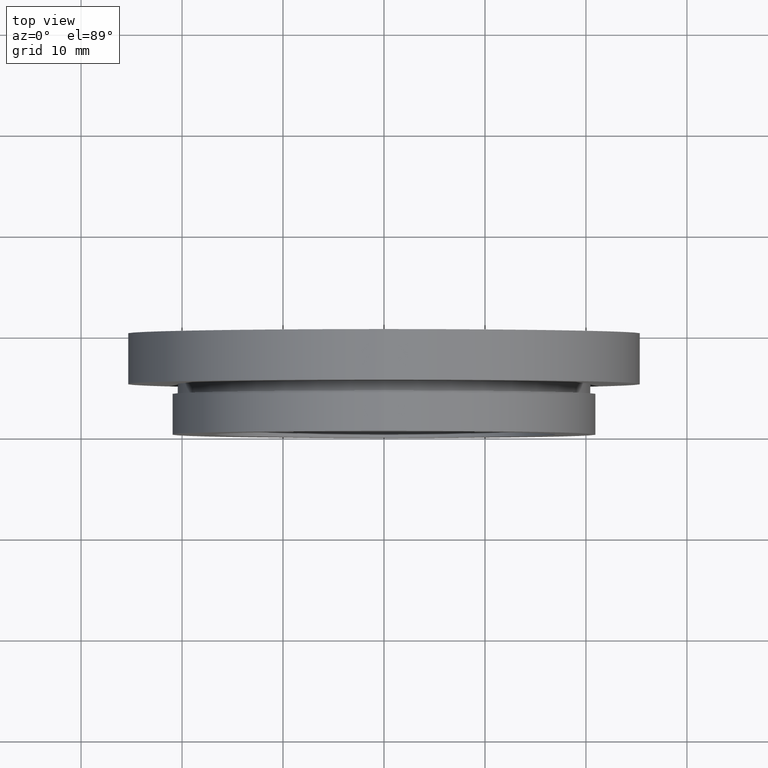
[diagram: clean part render]
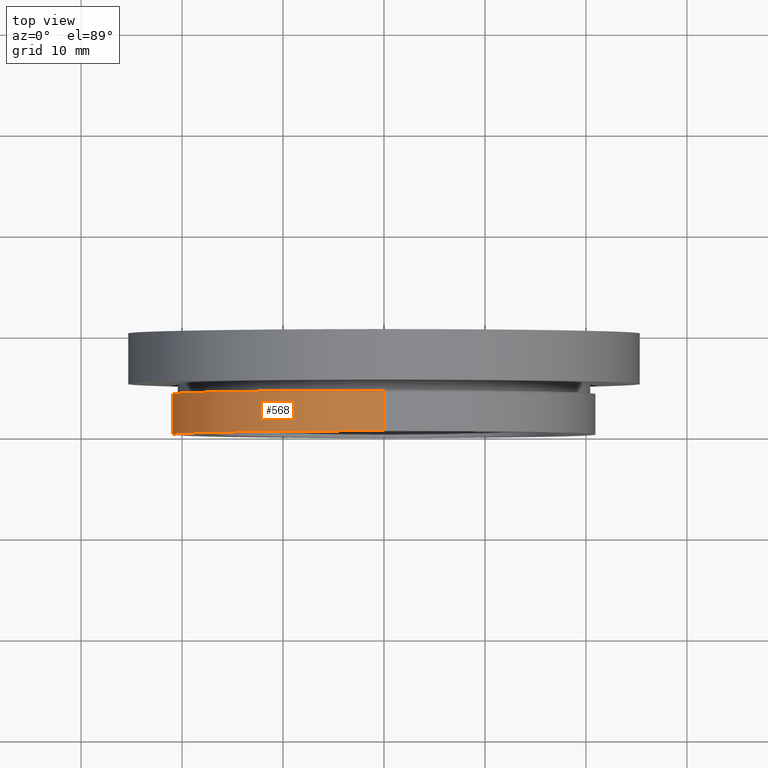
[diagram: same view with one face highlighted and labeled with its STEP entity id]
A machine part, top view. The second image highlights one B-rep face of the part: STEP entity #568.
In plain terms, the highlighted cylindrical surface (partial cylindrical patch) has radius 21 mm, axis along (-0, 1, -0).
Its self-contained STEP definition (entity closure, byte-faithful):
#11 = DIRECTION ( 'NONE',  ( 0.0000000000000000000, 0.0000000000000000000, 1.000000000000000000 ) ) ;
#18 = CARTESIAN_POINT ( 'NONE',  ( 2.571758278209441700E-015, 4.000000000000000000, -21.00000000000000000 ) ) ;
#55 = VECTOR ( 'NONE', #423, 1000.000000000000000 ) ;
#77 = EDGE_CURVE ( 'NONE', #360, #362, #102, .T. ) ;
#102 = LINE ( 'NONE', #282, #55 ) ;
#103 = EDGE_CURVE ( 'NONE', #555, #360, #612, .T. ) ;
#143 = EDGE_CURVE ( 'NONE', #506, #362, #347, .T. ) ;
#166 = CARTESIAN_POINT ( 'NONE',  ( 0.0000000000000000000, 13.74468085106383300, 0.0000000000000000000 ) ) ;
#172 = AXIS2_PLACEMENT_3D ( 'NONE', #250, #266, #264 ) ;
#236 = EDGE_CURVE ( 'NONE', #555, #506, #449, .T. ) ;
#243 = ORIENTED_EDGE ( 'NONE', *, *, #77, .T. ) ;
#250 = CARTESIAN_POINT ( 'NONE',  ( 0.0000000000000000000, 0.0000000000000000000, 0.0000000000000000000 ) ) ;
#263 = AXIS2_PLACEMENT_3D ( 'NONE', #286, #284, #11 ) ;
#264 = DIRECTION ( 'NONE',  ( 0.0000000000000000000, 0.0000000000000000000, 1.000000000000000000 ) ) ;
#266 = DIRECTION ( 'NONE',  ( -0.0000000000000000000, 1.000000000000000000, -0.0000000000000000000 ) ) ;
#282 = CARTESIAN_POINT ( 'NONE',  ( 0.0000000000000000000, 13.74468085106383300, 21.00000000000000000 ) ) ;
#284 = DIRECTION ( 'NONE',  ( -0.0000000000000000000, 1.000000000000000000, -0.0000000000000000000 ) ) ;
#286 = CARTESIAN_POINT ( 'NONE',  ( 0.0000000000000000000, 4.000000000000000000, 0.0000000000000000000 ) ) ;
#287 = AXIS2_PLACEMENT_3D ( 'NONE', #166, #373, #451 ) ;
#338 = ORIENTED_EDGE ( 'NONE', *, *, #143, .F. ) ;
#347 = CIRCLE ( 'NONE', #263, 21.00000000000000000 ) ;
#360 = VERTEX_POINT ( 'NONE', #606 ) ;
#362 = VERTEX_POINT ( 'NONE', #591 ) ;
#373 = DIRECTION ( 'NONE',  ( -0.0000000000000000000, 1.000000000000000000, -0.0000000000000000000 ) ) ;
#394 = ORIENTED_EDGE ( 'NONE', *, *, #236, .F. ) ;
#398 = VECTOR ( 'NONE', #479, 1000.000000000000000 ) ;
#411 = ORIENTED_EDGE ( 'NONE', *, *, #103, .T. ) ;
#415 = CARTESIAN_POINT ( 'NONE',  ( 2.571758278209441700E-015, 0.0000000000000000000, -21.00000000000000000 ) ) ;
#423 = DIRECTION ( 'NONE',  ( -0.0000000000000000000, 1.000000000000000000, -0.0000000000000000000 ) ) ;
#437 = CYLINDRICAL_SURFACE ( 'NONE', #287, 21.00000000000000000 ) ;
#449 = LINE ( 'NONE', #520, #398 ) ;
#451 = DIRECTION ( 'NONE',  ( 0.0000000000000000000, 0.0000000000000000000, 1.000000000000000000 ) ) ;
#479 = DIRECTION ( 'NONE',  ( -0.0000000000000000000, 1.000000000000000000, -0.0000000000000000000 ) ) ;
#506 = VERTEX_POINT ( 'NONE', #18 ) ;
#520 = CARTESIAN_POINT ( 'NONE',  ( 2.571758278209441700E-015, 13.74468085106383300, -21.00000000000000000 ) ) ;
#555 = VERTEX_POINT ( 'NONE', #415 ) ;
#568 = ADVANCED_FACE ( 'NONE', ( #579 ), #437, .T. ) ;
#579 = FACE_OUTER_BOUND ( 'NONE', #620, .T. ) ;
#591 = CARTESIAN_POINT ( 'NONE',  ( 0.0000000000000000000, 4.000000000000000000, 21.00000000000000000 ) ) ;
#606 = CARTESIAN_POINT ( 'NONE',  ( 0.0000000000000000000, 0.0000000000000000000, 21.00000000000000000 ) ) ;
#612 = CIRCLE ( 'NONE', #172, 21.00000000000000000 ) ;
#620 = EDGE_LOOP ( 'NONE', ( #394, #411, #243, #338 ) ) ;